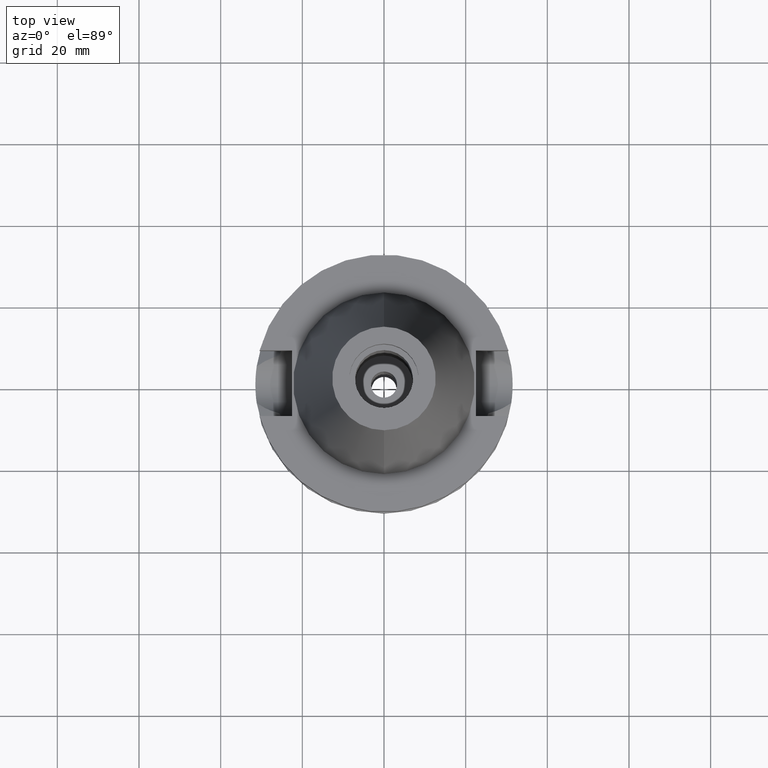
[diagram: clean part render]
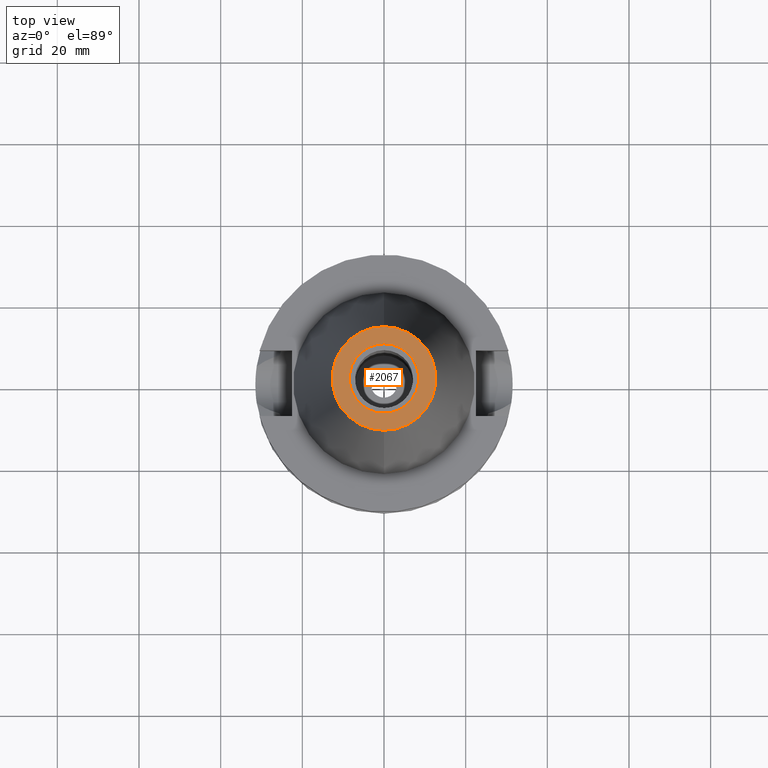
[diagram: same view with one face highlighted and labeled with its STEP entity id]
A machine part, top view. The second image highlights one B-rep face of the part: STEP entity #2067.
In plain terms, the highlighted planar face has unit normal (0, 0, -1).
Its self-contained STEP definition (entity closure, byte-faithful):
#30 = EDGE_CURVE ( 'NONE', #896, #1980, #2391, .T. ) ;
#58 = DIRECTION ( 'NONE',  ( 0.0000000000000000000, 1.000000000000000000, 0.0000000000000000000 ) ) ;
#222 = AXIS2_PLACEMENT_3D ( 'NONE', #2247, #2682, #705 ) ;
#237 = ORIENTED_EDGE ( 'NONE', *, *, #2768, .F. ) ;
#267 = ORIENTED_EDGE ( 'NONE', *, *, #30, .F. ) ;
#278 = DIRECTION ( 'NONE',  ( 0.0000000000000000000, -1.000000000000000000, 0.0000000000000000000 ) ) ;
#335 = AXIS2_PLACEMENT_3D ( 'NONE', #2335, #1911, #278 ) ;
#359 = ORIENTED_EDGE ( 'NONE', *, *, #2274, .F. ) ;
#580 = VERTEX_POINT ( 'NONE', #1074 ) ;
#585 = EDGE_CURVE ( 'NONE', #1980, #896, #1491, .T. ) ;
#705 = DIRECTION ( 'NONE',  ( 0.0000000000000000000, 1.000000000000000000, 0.0000000000000000000 ) ) ;
#727 = ORIENTED_EDGE ( 'NONE', *, *, #585, .F. ) ;
#896 = VERTEX_POINT ( 'NONE', #1007 ) ;
#920 = DIRECTION ( 'NONE',  ( 0.0000000000000000000, -1.000000000000000000, 0.0000000000000000000 ) ) ;
#1007 = CARTESIAN_POINT ( 'NONE',  ( 0.0000000000000000000, -12.68766899429999917, 65.40000000000000568 ) ) ;
#1074 = CARTESIAN_POINT ( 'NONE',  ( 0.0000000000000000000, -8.500000000000000000, 65.40000000000000568 ) ) ;
#1079 = CARTESIAN_POINT ( 'NONE',  ( 0.0000000000000000000, 8.500000000000000000, 65.40000000000000568 ) ) ;
#1175 = CARTESIAN_POINT ( 'NONE',  ( 0.0000000000000000000, 2.118271568485000005E-14, 65.40000000000000568 ) ) ;
#1280 = PLANE ( 'NONE',  #1457 ) ;
#1298 = AXIS2_PLACEMENT_3D ( 'NONE', #1576, #2070, #2281 ) ;
#1370 = CARTESIAN_POINT ( 'NONE',  ( 0.0000000000000000000, 2.025565805790000122E-14, 65.40000000000000568 ) ) ;
#1418 = CIRCLE ( 'NONE', #2127, 8.500000000000000000 ) ;
#1457 = AXIS2_PLACEMENT_3D ( 'NONE', #1370, #1801, #920 ) ;
#1459 = CIRCLE ( 'NONE', #335, 8.500000000000000000 ) ;
#1467 = EDGE_LOOP ( 'NONE', ( #727, #267 ) ) ;
#1491 = CIRCLE ( 'NONE', #222, 12.68766899429999917 ) ;
#1564 = EDGE_LOOP ( 'NONE', ( #237, #359 ) ) ;
#1576 = CARTESIAN_POINT ( 'NONE',  ( 0.0000000000000000000, 1.625106302469000024E-14, 65.40000000000000568 ) ) ;
#1702 = CARTESIAN_POINT ( 'NONE',  ( 0.0000000000000000000, 12.68766899429999917, 65.40000000000000568 ) ) ;
#1801 = DIRECTION ( 'NONE',  ( 0.0000000000000000000, 0.0000000000000000000, -1.000000000000000000 ) ) ;
#1911 = DIRECTION ( 'NONE',  ( 0.0000000000000000000, 0.0000000000000000000, 1.000000000000000000 ) ) ;
#1980 = VERTEX_POINT ( 'NONE', #1702 ) ;
#2042 = FACE_OUTER_BOUND ( 'NONE', #1467, .T. ) ;
#2067 = ADVANCED_FACE ( 'NONE', ( #2042, #2493 ), #1280, .F. ) ;
#2070 = DIRECTION ( 'NONE',  ( 0.0000000000000000000, 0.0000000000000000000, -1.000000000000000000 ) ) ;
#2127 = AXIS2_PLACEMENT_3D ( 'NONE', #1175, #2345, #58 ) ;
#2247 = CARTESIAN_POINT ( 'NONE',  ( 0.0000000000000000000, 1.625106302469000024E-14, 65.40000000000000568 ) ) ;
#2274 = EDGE_CURVE ( 'NONE', #580, #2512, #1459, .T. ) ;
#2281 = DIRECTION ( 'NONE',  ( 0.0000000000000000000, -1.000000000000000000, 0.0000000000000000000 ) ) ;
#2335 = CARTESIAN_POINT ( 'NONE',  ( 0.0000000000000000000, 2.118271568485000005E-14, 65.40000000000000568 ) ) ;
#2345 = DIRECTION ( 'NONE',  ( 0.0000000000000000000, 0.0000000000000000000, 1.000000000000000000 ) ) ;
#2391 = CIRCLE ( 'NONE', #1298, 12.68766899429999917 ) ;
#2493 = FACE_BOUND ( 'NONE', #1564, .T. ) ;
#2512 = VERTEX_POINT ( 'NONE', #1079 ) ;
#2682 = DIRECTION ( 'NONE',  ( 0.0000000000000000000, 0.0000000000000000000, -1.000000000000000000 ) ) ;
#2768 = EDGE_CURVE ( 'NONE', #2512, #580, #1418, .T. ) ;